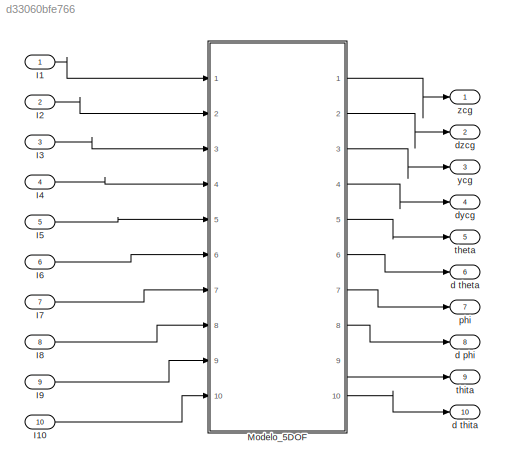
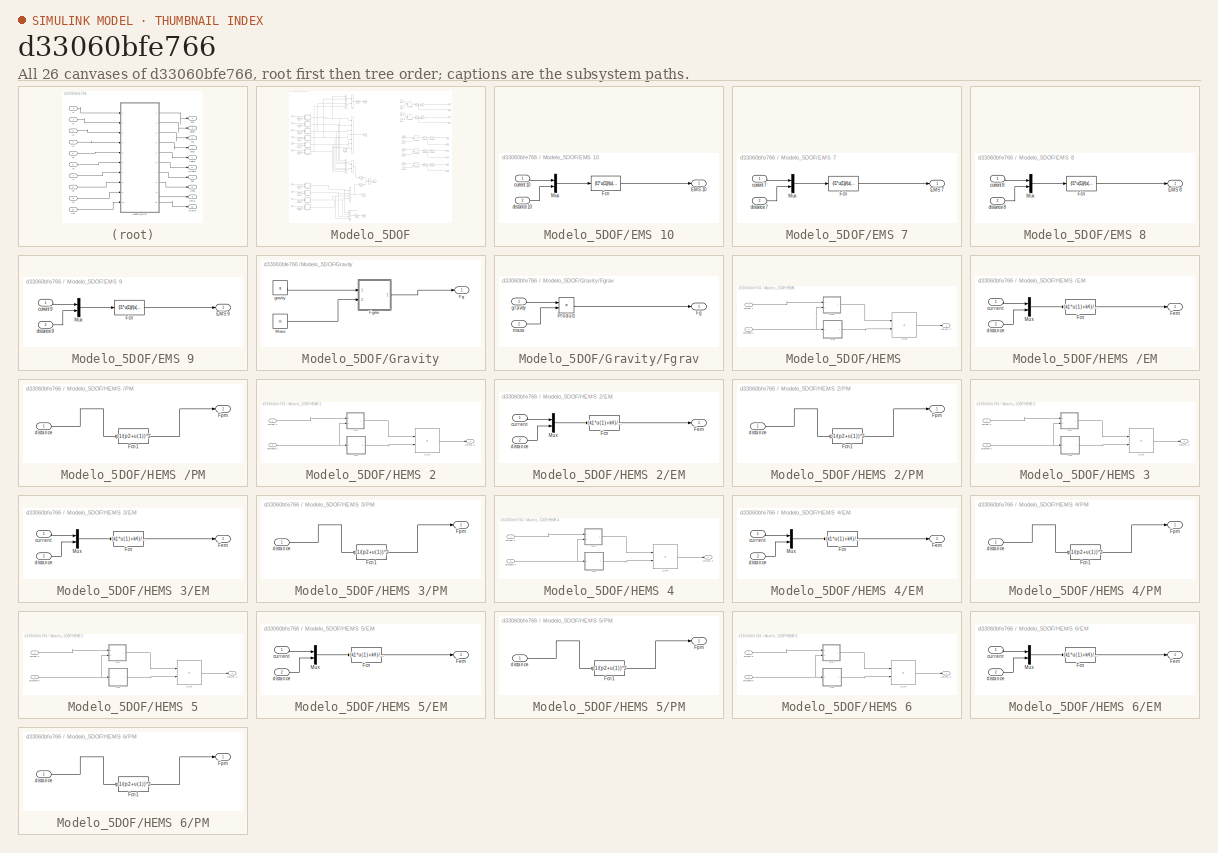
[diagram: thumbnail index - all 26 canvases of the model, root first then tree order]
MODEL slx_d33060bfe766
KIND model
CONFIG AbsTol = auto
CONFIG EnableMultiTasking = off
CONFIG FixedStep = T
CONFIG MaxStep = auto
CONFIG MinStep = auto
CONFIG RelTol = 1e-3
CONFIG SampleTimeConstraint = Unconstrained
CONFIG SolverName = VariableStepAuto
CONFIG StartTime = 0.0
CONFIG StopTime = 5
BLOCK [Inport] I1
BLOCK [Inport] I10
  Port = 10
BLOCK [Inport] I2
  Port = 2
BLOCK [Inport] I3
  Port = 3
BLOCK [Inport] I4
  Port = 4
BLOCK [Inport] I5
  Port = 5
BLOCK [Inport] I6
  Port = 6
BLOCK [Inport] I7
  Port = 7
BLOCK [Inport] I8
  Port = 8
BLOCK [Inport] I9
  Port = 9
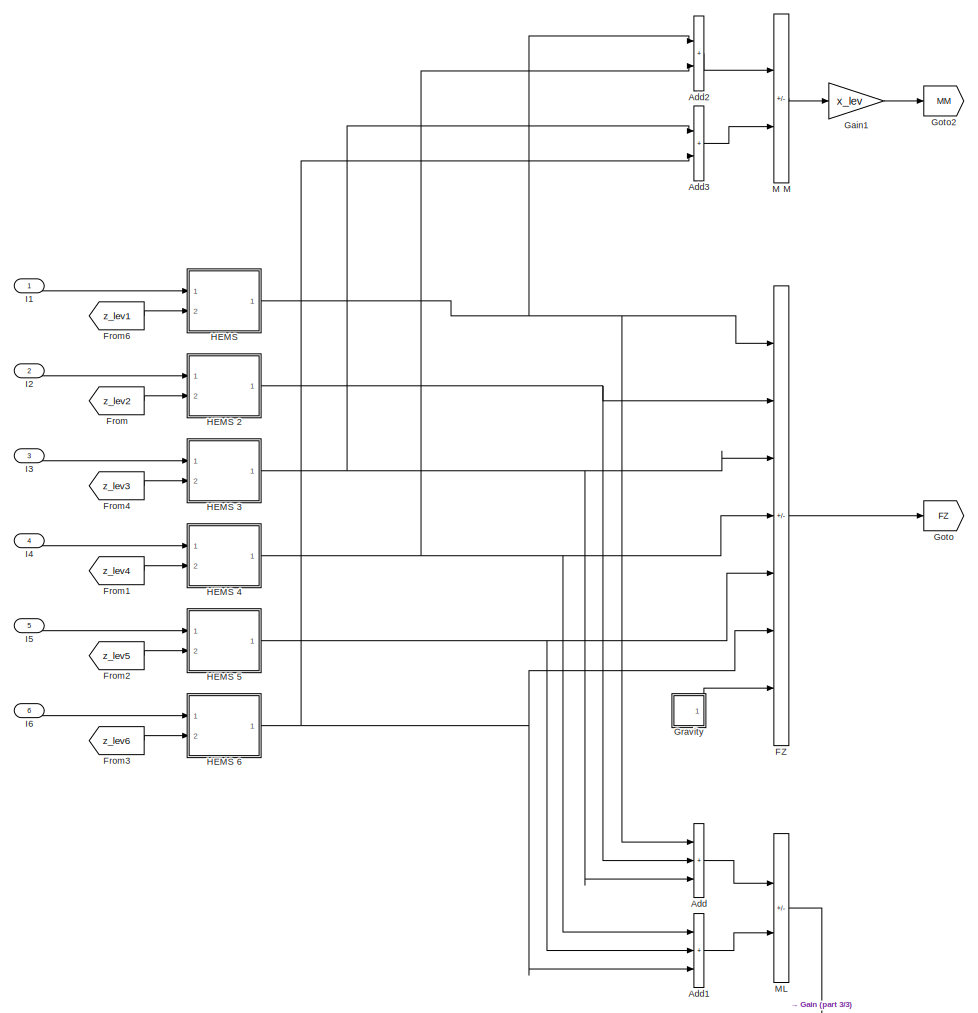
[diagram: Modelo_5DOF - part 1/3, top left region]
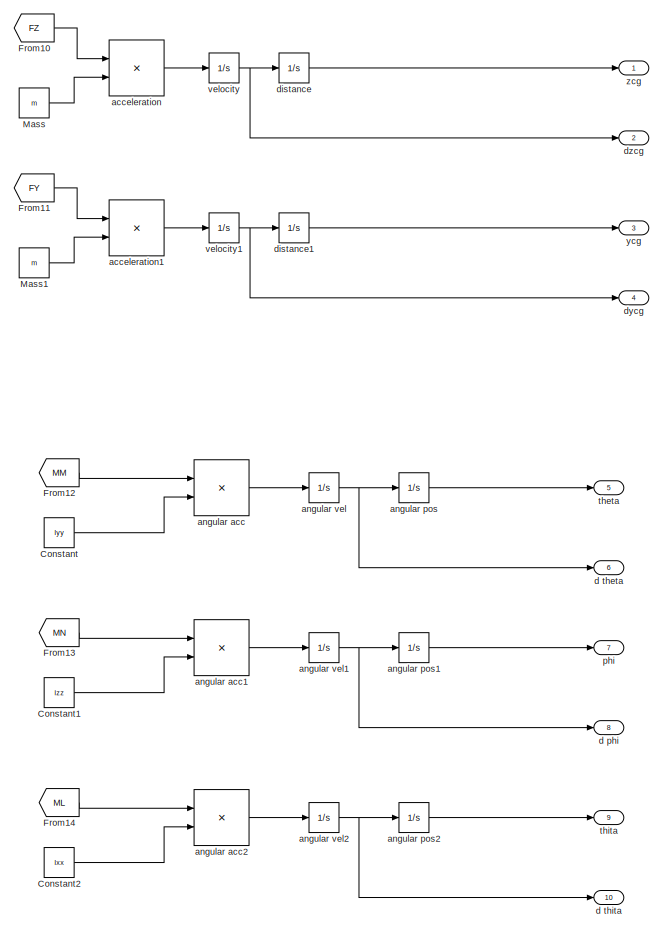
[diagram: Modelo_5DOF - part 2/3, middle right region]
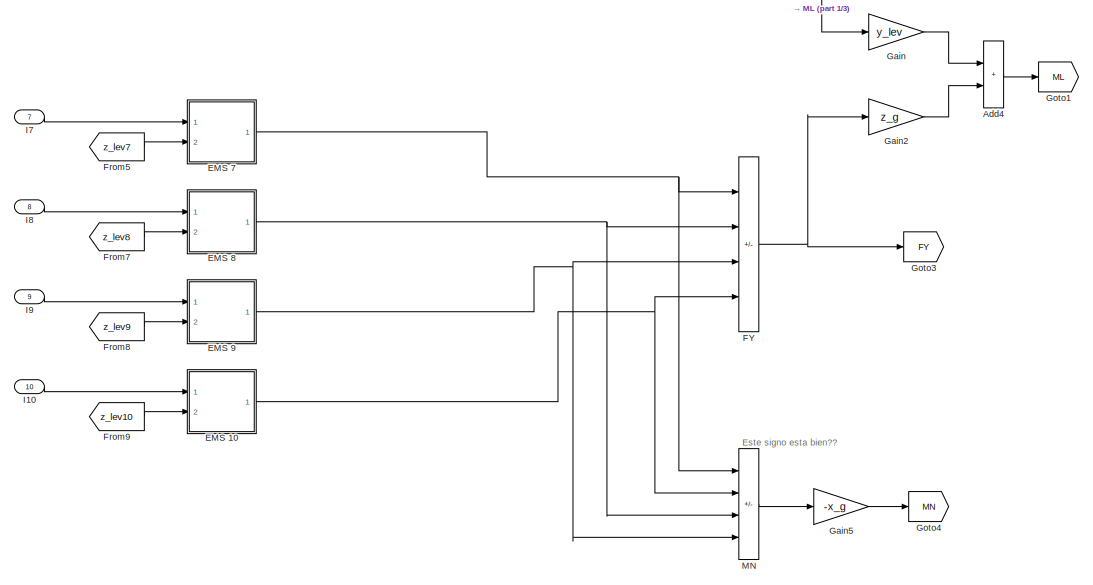
[diagram: Modelo_5DOF - part 3/3, bottom left region]
BLOCK [SubSystem] Modelo_5DOF
  Ports = [10, 10]
  RequestExecContextInheritance = off
BLOCK [Sum] Modelo_5DOF/Add
  IconShape = rectangular
  Inputs = +++
  Ports = [3, 1]
BLOCK [Sum] Modelo_5DOF/Add1
  IconShape = rectangular
  Inputs = +++
  Ports = [3, 1]
BLOCK [Sum] Modelo_5DOF/Add2
  IconShape = rectangular
  Ports = [2, 1]
BLOCK [Sum] Modelo_5DOF/Add3
  IconShape = rectangular
  Ports = [2, 1]
BLOCK [Sum] Modelo_5DOF/Add4
  IconShape = rectangular
  Ports = [2, 1]
BLOCK [Constant] Modelo_5DOF/Constant
  Value = Iyy
BLOCK [Constant] Modelo_5DOF/Constant1
  Value = Izz
BLOCK [Constant] Modelo_5DOF/Constant2
  Value = Ixx
BLOCK [SubSystem] Modelo_5DOF/EMS 10
  Ports = [2, 1]
  RequestExecContextInheritance = off
BLOCK [Outport] Modelo_5DOF/EMS 10/EMS 10
  VectorParamsAs1DForOutWhenUnconnected = off
BLOCK [Fcn] Modelo_5DOF/EMS 10/Fcn
  Expr = (l1*u(1))/(u(2)*l3+l2)^2
BLOCK [Mux] Modelo_5DOF/EMS 10/Mux
  DisplayOption = bar
  Inputs = 2
  Ports = [2, 1]
BLOCK [Inport] Modelo_5DOF/EMS 10/current 10
BLOCK [Inport] Modelo_5DOF/EMS 10/distance 10
  Port = 2
BLOCK [SubSystem] Modelo_5DOF/EMS 7
  Ports = [2, 1]
  RequestExecContextInheritance = off
BLOCK [Outport] Modelo_5DOF/EMS 7/EMS 7
  VectorParamsAs1DForOutWhenUnconnected = off
BLOCK [Fcn] Modelo_5DOF/EMS 7/Fcn
  Expr = (l1*u(1))/(u(2)*l3+l2)^2
BLOCK [Mux] Modelo_5DOF/EMS 7/Mux
  DisplayOption = bar
  Inputs = 2
  Ports = [2, 1]
BLOCK [Inport] Modelo_5DOF/EMS 7/current 7
BLOCK [Inport] Modelo_5DOF/EMS 7/distance 7
  Port = 2
BLOCK [SubSystem] Modelo_5DOF/EMS 8
  Ports = [2, 1]
  RequestExecContextInheritance = off
BLOCK [Outport] Modelo_5DOF/EMS 8/EMS 8
  VectorParamsAs1DForOutWhenUnconnected = off
BLOCK [Fcn] Modelo_5DOF/EMS 8/Fcn
  Expr = (l1*u(1))/(u(2)*l3+l2)^2
BLOCK [Mux] Modelo_5DOF/EMS 8/Mux
  DisplayOption = bar
  Inputs = 2
  Ports = [2, 1]
BLOCK [Inport] Modelo_5DOF/EMS 8/current 8
BLOCK [Inport] Modelo_5DOF/EMS 8/distance 8
  Port = 2
BLOCK [SubSystem] Modelo_5DOF/EMS 9
  Ports = [2, 1]
  RequestExecContextInheritance = off
BLOCK [Outport] Modelo_5DOF/EMS 9/EMS 9
  VectorParamsAs1DForOutWhenUnconnected = off
BLOCK [Fcn] Modelo_5DOF/EMS 9/Fcn
  Expr = (l1*u(1))/(u(2)*l3+l2)^2
BLOCK [Mux] Modelo_5DOF/EMS 9/Mux
  DisplayOption = bar
  Inputs = 2
  Ports = [2, 1]
BLOCK [Inport] Modelo_5DOF/EMS 9/current 9
BLOCK [Inport] Modelo_5DOF/EMS 9/distance 9
  Port = 2
BLOCK [Sum] Modelo_5DOF/FY
  IconShape = rectangular
  Inputs = ++--
  Ports = [4, 1]
BLOCK [Sum] Modelo_5DOF/FZ
  IconShape = rectangular
  Inputs = ------+
  Ports = [7, 1]
BLOCK [From] Modelo_5DOF/From
  GotoTag = z_lev2
BLOCK [From] Modelo_5DOF/From1
  GotoTag = z_lev4
BLOCK [From] Modelo_5DOF/From10
  GotoTag = FZ
BLOCK [From] Modelo_5DOF/From11
  GotoTag = FY
BLOCK [From] Modelo_5DOF/From12
  GotoTag = MM
BLOCK [From] Modelo_5DOF/From13
  GotoTag = MN
BLOCK [From] Modelo_5DOF/From14
  GotoTag = ML
BLOCK [From] Modelo_5DOF/From2
  GotoTag = z_lev5
BLOCK [From] Modelo_5DOF/From3
  GotoTag = z_lev6
BLOCK [From] Modelo_5DOF/From4
  GotoTag = z_lev3
BLOCK [From] Modelo_5DOF/From5
  GotoTag = z_lev7
BLOCK [From] Modelo_5DOF/From6
  GotoTag = z_lev1
BLOCK [From] Modelo_5DOF/From7
  GotoTag = z_lev8
BLOCK [From] Modelo_5DOF/From8
  GotoTag = z_lev9
BLOCK [From] Modelo_5DOF/From9
  GotoTag = z_lev10
BLOCK [Gain] Modelo_5DOF/Gain
  Gain = y_lev
BLOCK [Gain] Modelo_5DOF/Gain1
  Gain = x_lev
BLOCK [Gain] Modelo_5DOF/Gain2
  Gain = z_g
BLOCK [Gain] Modelo_5DOF/Gain5
  Gain = -x_g
BLOCK [Goto] Modelo_5DOF/Goto
  GotoTag = FZ
BLOCK [Goto] Modelo_5DOF/Goto1
  GotoTag = ML
BLOCK [Goto] Modelo_5DOF/Goto2
  GotoTag = MM
BLOCK [Goto] Modelo_5DOF/Goto3
  GotoTag = FY
BLOCK [Goto] Modelo_5DOF/Goto4
  GotoTag = MN
BLOCK [SubSystem] Modelo_5DOF/Gravity
  Ports = [0, 1]
  RequestExecContextInheritance = off
BLOCK [Outport] Modelo_5DOF/Gravity/Fg
BLOCK [SubSystem] Modelo_5DOF/Gravity/Fgrav
  Ports = [2, 1]
  RequestExecContextInheritance = off
BLOCK [Outport] Modelo_5DOF/Gravity/Fgrav/Fg
  VectorParamsAs1DForOutWhenUnconnected = off
BLOCK [Product] Modelo_5DOF/Gravity/Fgrav/Product
  Ports = [2, 1]
BLOCK [Inport] Modelo_5DOF/Gravity/Fgrav/gravity
BLOCK [Inport] Modelo_5DOF/Gravity/Fgrav/mass
  Port = 2
BLOCK [Constant] Modelo_5DOF/Gravity/Mass
  Value = m
BLOCK [Constant] Modelo_5DOF/Gravity/gravity
  Value = g
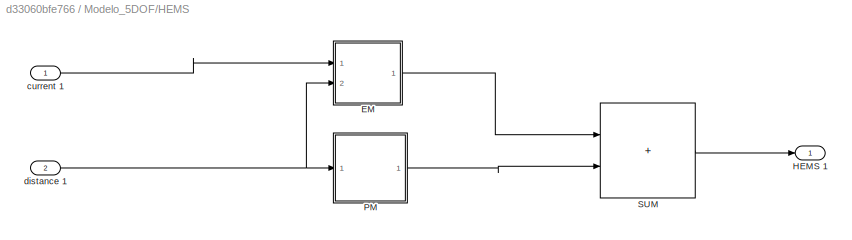
BLOCK [SubSystem] Modelo_5DOF/HEMS 
  Ports = [2, 1]
  RequestExecContextInheritance = off
BLOCK [SubSystem] Modelo_5DOF/HEMS /EM
  Ports = [2, 1]
  RequestExecContextInheritance = off
BLOCK [Fcn] Modelo_5DOF/HEMS /EM/Fcn
  Expr = (k1*u(1)+k4)/(u(2)*k3-k2)^2
BLOCK [Outport] Modelo_5DOF/HEMS /EM/Fem
  VectorParamsAs1DForOutWhenUnconnected = off
BLOCK [Mux] Modelo_5DOF/HEMS /EM/Mux
  DisplayOption = bar
  Inputs = 2
  Ports = [2, 1]
BLOCK [Inport] Modelo_5DOF/HEMS /EM/current
BLOCK [Inport] Modelo_5DOF/HEMS /EM/distance
  Port = 2
BLOCK [Outport] Modelo_5DOF/HEMS /HEMS 1
  VectorParamsAs1DForOutWhenUnconnected = off
BLOCK [SubSystem] Modelo_5DOF/HEMS /PM
  Ports = [1, 1]
  RequestExecContextInheritance = off
BLOCK [Fcn] Modelo_5DOF/HEMS /PM/Fcn1
  Expr = p1/(p2+u(1))^2
BLOCK [Outport] Modelo_5DOF/HEMS /PM/Fpm
  VectorParamsAs1DForOutWhenUnconnected = off
BLOCK [Inport] Modelo_5DOF/HEMS /PM/distance
BLOCK [Sum] Modelo_5DOF/HEMS /SUM
  IconShape = rectangular
  Ports = [2, 1]
BLOCK [Inport] Modelo_5DOF/HEMS /current 1
BLOCK [Inport] Modelo_5DOF/HEMS /distance 1
  Port = 2
BLOCK [SubSystem] Modelo_5DOF/HEMS 2
  Ports = [2, 1]
  RequestExecContextInheritance = off
BLOCK [SubSystem] Modelo_5DOF/HEMS 2/EM
  Ports = [2, 1]
  RequestExecContextInheritance = off
BLOCK [Fcn] Modelo_5DOF/HEMS 2/EM/Fcn
  Expr = (k1*u(1)+k4)/(u(2)*k3-k2)^2
BLOCK [Outport] Modelo_5DOF/HEMS 2/EM/Fem
  VectorParamsAs1DForOutWhenUnconnected = off
BLOCK [Mux] Modelo_5DOF/HEMS 2/EM/Mux
  DisplayOption = bar
  Inputs = 2
  Ports = [2, 1]
BLOCK [Inport] Modelo_5DOF/HEMS 2/EM/current
BLOCK [Inport] Modelo_5DOF/HEMS 2/EM/distance
  Port = 2
BLOCK [Outport] Modelo_5DOF/HEMS 2/HEMS 2
  VectorParamsAs1DForOutWhenUnconnected = off
BLOCK [SubSystem] Modelo_5DOF/HEMS 2/PM
  Ports = [1, 1]
  RequestExecContextInheritance = off
BLOCK [Fcn] Modelo_5DOF/HEMS 2/PM/Fcn1
  Expr = p1/(p2+u(1))^2
BLOCK [Outport] Modelo_5DOF/HEMS 2/PM/Fpm
  VectorParamsAs1DForOutWhenUnconnected = off
BLOCK [Inport] Modelo_5DOF/HEMS 2/PM/distance
BLOCK [Sum] Modelo_5DOF/HEMS 2/SUM
  IconShape = rectangular
  Ports = [2, 1]
BLOCK [Inport] Modelo_5DOF/HEMS 2/current 2
BLOCK [Inport] Modelo_5DOF/HEMS 2/distance 2
  Port = 2
BLOCK [SubSystem] Modelo_5DOF/HEMS 3
  Ports = [2, 1]
  RequestExecContextInheritance = off
BLOCK [SubSystem] Modelo_5DOF/HEMS 3/EM
  Ports = [2, 1]
  RequestExecContextInheritance = off
BLOCK [Fcn] Modelo_5DOF/HEMS 3/EM/Fcn
  Expr = (k1*u(1)+k4)/(u(2)*k3-k2)^2
BLOCK [Outport] Modelo_5DOF/HEMS 3/EM/Fem
  VectorParamsAs1DForOutWhenUnconnected = off
BLOCK [Mux] Modelo_5DOF/HEMS 3/EM/Mux
  DisplayOption = bar
  Inputs = 2
  Ports = [2, 1]
BLOCK [Inport] Modelo_5DOF/HEMS 3/EM/current
BLOCK [Inport] Modelo_5DOF/HEMS 3/EM/distance
  Port = 2
BLOCK [Outport] Modelo_5DOF/HEMS 3/HEMS 3
  VectorParamsAs1DForOutWhenUnconnected = off
BLOCK [SubSystem] Modelo_5DOF/HEMS 3/PM
  Ports = [1, 1]
  RequestExecContextInheritance = off
BLOCK [Fcn] Modelo_5DOF/HEMS 3/PM/Fcn1
  Expr = p1/(p2+u(1))^2
BLOCK [Outport] Modelo_5DOF/HEMS 3/PM/Fpm
  VectorParamsAs1DForOutWhenUnconnected = off
BLOCK [Inport] Modelo_5DOF/HEMS 3/PM/distance
BLOCK [Sum] Modelo_5DOF/HEMS 3/SUM
  IconShape = rectangular
  Ports = [2, 1]
BLOCK [Inport] Modelo_5DOF/HEMS 3/current 3
BLOCK [Inport] Modelo_5DOF/HEMS 3/distance 3
  Port = 2
BLOCK [SubSystem] Modelo_5DOF/HEMS 4
  Ports = [2, 1]
  RequestExecContextInheritance = off
BLOCK [SubSystem] Modelo_5DOF/HEMS 4/EM
  Ports = [2, 1]
  RequestExecContextInheritance = off
BLOCK [Fcn] Modelo_5DOF/HEMS 4/EM/Fcn
  Expr = (k1*u(1)+k4)/(u(2)*k3-k2)^2
BLOCK [Outport] Modelo_5DOF/HEMS 4/EM/Fem
  VectorParamsAs1DForOutWhenUnconnected = off
BLOCK [Mux] Modelo_5DOF/HEMS 4/EM/Mux
  DisplayOption = bar
  Inputs = 2
  Ports = [2, 1]
BLOCK [Inport] Modelo_5DOF/HEMS 4/EM/current
BLOCK [Inport] Modelo_5DOF/HEMS 4/EM/distance
  Port = 2
BLOCK [Outport] Modelo_5DOF/HEMS 4/HEMS 4
  VectorParamsAs1DForOutWhenUnconnected = off
BLOCK [SubSystem] Modelo_5DOF/HEMS 4/PM
  Ports = [1, 1]
  RequestExecContextInheritance = off
BLOCK [Fcn] Modelo_5DOF/HEMS 4/PM/Fcn1
  Expr = p1/(p2+u(1))^2
BLOCK [Outport] Modelo_5DOF/HEMS 4/PM/Fpm
  VectorParamsAs1DForOutWhenUnconnected = off
BLOCK [Inport] Modelo_5DOF/HEMS 4/PM/distance
BLOCK [Sum] Modelo_5DOF/HEMS 4/SUM
  IconShape = rectangular
  Ports = [2, 1]
BLOCK [Inport] Modelo_5DOF/HEMS 4/current 4
BLOCK [Inport] Modelo_5DOF/HEMS 4/distance 4
  Port = 2
BLOCK [SubSystem] Modelo_5DOF/HEMS 5
  Ports = [2, 1]
  RequestExecContextInheritance = off
BLOCK [SubSystem] Modelo_5DOF/HEMS 5/EM
  Ports = [2, 1]
  RequestExecContextInheritance = off
BLOCK [Fcn] Modelo_5DOF/HEMS 5/EM/Fcn
  Expr = (k1*u(1)+k4)/(u(2)*k3-k2)^2
BLOCK [Outport] Modelo_5DOF/HEMS 5/EM/Fem
  VectorParamsAs1DForOutWhenUnconnected = off
BLOCK [Mux] Modelo_5DOF/HEMS 5/EM/Mux
  DisplayOption = bar
  Inputs = 2
  Ports = [2, 1]
BLOCK [Inport] Modelo_5DOF/HEMS 5/EM/current
BLOCK [Inport] Modelo_5DOF/HEMS 5/EM/distance
  Port = 2
BLOCK [Outport] Modelo_5DOF/HEMS 5/HEMS 5
  VectorParamsAs1DForOutWhenUnconnected = off
BLOCK [SubSystem] Modelo_5DOF/HEMS 5/PM
  Ports = [1, 1]
  RequestExecContextInheritance = off
BLOCK [Fcn] Modelo_5DOF/HEMS 5/PM/Fcn1
  Expr = p1/(p2+u(1))^2
BLOCK [Outport] Modelo_5DOF/HEMS 5/PM/Fpm
  VectorParamsAs1DForOutWhenUnconnected = off
BLOCK [Inport] Modelo_5DOF/HEMS 5/PM/distance
BLOCK [Sum] Modelo_5DOF/HEMS 5/SUM
  IconShape = rectangular
  Ports = [2, 1]
BLOCK [Inport] Modelo_5DOF/HEMS 5/current 5
BLOCK [Inport] Modelo_5DOF/HEMS 5/distance 5
  Port = 2
BLOCK [SubSystem] Modelo_5DOF/HEMS 6
  Ports = [2, 1]
  RequestExecContextInheritance = off
BLOCK [SubSystem] Modelo_5DOF/HEMS 6/EM
  Ports = [2, 1]
  RequestExecContextInheritance = off
BLOCK [Fcn] Modelo_5DOF/HEMS 6/EM/Fcn
  Expr = (k1*u(1)+k4)/(u(2)*k3-k2)^2
BLOCK [Outport] Modelo_5DOF/HEMS 6/EM/Fem
  VectorParamsAs1DForOutWhenUnconnected = off
BLOCK [Mux] Modelo_5DOF/HEMS 6/EM/Mux
  DisplayOption = bar
  Inputs = 2
  Ports = [2, 1]
BLOCK [Inport] Modelo_5DOF/HEMS 6/EM/current
BLOCK [Inport] Modelo_5DOF/HEMS 6/EM/distance
  Port = 2
BLOCK [Outport] Modelo_5DOF/HEMS 6/HEMS 6
  VectorParamsAs1DForOutWhenUnconnected = off
BLOCK [SubSystem] Modelo_5DOF/HEMS 6/PM
  Ports = [1, 1]
  RequestExecContextInheritance = off
BLOCK [Fcn] Modelo_5DOF/HEMS 6/PM/Fcn1
  Expr = p1/(p2+u(1))^2
BLOCK [Outport] Modelo_5DOF/HEMS 6/PM/Fpm
  VectorParamsAs1DForOutWhenUnconnected = off
BLOCK [Inport] Modelo_5DOF/HEMS 6/PM/distance
BLOCK [Sum] Modelo_5DOF/HEMS 6/SUM
  IconShape = rectangular
  Ports = [2, 1]
BLOCK [Inport] Modelo_5DOF/HEMS 6/current 6
BLOCK [Inport] Modelo_5DOF/HEMS 6/distance 6
  Port = 2
BLOCK [Inport] Modelo_5DOF/I1
BLOCK [Inport] Modelo_5DOF/I10
  Port = 10
BLOCK [Inport] Modelo_5DOF/I2
  Port = 2
BLOCK [Inport] Modelo_5DOF/I3
  Port = 3
BLOCK [Inport] Modelo_5DOF/I4
  Port = 4
BLOCK [Inport] Modelo_5DOF/I5
  Port = 5
BLOCK [Inport] Modelo_5DOF/I6
  Port = 6
BLOCK [Inport] Modelo_5DOF/I7
  Port = 7
BLOCK [Inport] Modelo_5DOF/I8
  Port = 8
BLOCK [Inport] Modelo_5DOF/I9
  Port = 9
BLOCK [Sum] Modelo_5DOF/M M
  IconShape = rectangular
  Inputs = +-
  Ports = [2, 1]
BLOCK [Sum] Modelo_5DOF/ML
  IconShape = rectangular
  Inputs = +-
  Ports = [2, 1]
BLOCK [Sum] Modelo_5DOF/MN
  IconShape = rectangular
  Inputs = ++--
  Ports = [4, 1]
BLOCK [Constant] Modelo_5DOF/Mass
  Value = m
BLOCK [Constant] Modelo_5DOF/Mass1
  Value = m
BLOCK [Product] Modelo_5DOF/acceleration
  Inputs = */
  Ports = [2, 1]
BLOCK [Product] Modelo_5DOF/acceleration1
  Inputs = */
  Ports = [2, 1]
BLOCK [Product] Modelo_5DOF/angular acc
  Inputs = */
  Ports = [2, 1]
BLOCK [Product] Modelo_5DOF/angular acc1
  Inputs = */
  Ports = [2, 1]
BLOCK [Product] Modelo_5DOF/angular acc2
  Inputs = */
  Ports = [2, 1]
BLOCK [Integrator] Modelo_5DOF/angular pos
  InitialCondition = theta0
  Ports = [1, 1]
BLOCK [Integrator] Modelo_5DOF/angular pos1
  InitialCondition = theta0
  Ports = [1, 1]
BLOCK [Integrator] Modelo_5DOF/angular pos2
  InitialCondition = theta0
  Ports = [1, 1]
BLOCK [Integrator] Modelo_5DOF/angular vel
  Ports = [1, 1]
BLOCK [Integrator] Modelo_5DOF/angular vel1
  Ports = [1, 1]
BLOCK [Integrator] Modelo_5DOF/angular vel2
  Ports = [1, 1]
BLOCK [Outport] Modelo_5DOF/d phi
  Port = 8
  VectorParamsAs1DForOutWhenUnconnected = off
BLOCK [Outport] Modelo_5DOF/d theta
  Port = 6
  VectorParamsAs1DForOutWhenUnconnected = off
BLOCK [Outport] Modelo_5DOF/d thita
  Port = 10
  VectorParamsAs1DForOutWhenUnconnected = off
BLOCK [Integrator] Modelo_5DOF/distance
  InitialCondition = z_ini
  Ports = [1, 1]
BLOCK [Integrator] Modelo_5DOF/distance1
  Ports = [1, 1]
BLOCK [Outport] Modelo_5DOF/dycg
  Port = 4
  VectorParamsAs1DForOutWhenUnconnected = off
BLOCK [Outport] Modelo_5DOF/dzcg
  Port = 2
  VectorParamsAs1DForOutWhenUnconnected = off
BLOCK [Outport] Modelo_5DOF/phi
  Port = 7
  VectorParamsAs1DForOutWhenUnconnected = off
BLOCK [Outport] Modelo_5DOF/theta
  Port = 5
  VectorParamsAs1DForOutWhenUnconnected = off
BLOCK [Outport] Modelo_5DOF/thita
  Port = 9
  VectorParamsAs1DForOutWhenUnconnected = off
BLOCK [Integrator] Modelo_5DOF/velocity
  Ports = [1, 1]
BLOCK [Integrator] Modelo_5DOF/velocity1
  Ports = [1, 1]
BLOCK [Outport] Modelo_5DOF/ycg
  Port = 3
  VectorParamsAs1DForOutWhenUnconnected = off
BLOCK [Outport] Modelo_5DOF/zcg
  VectorParamsAs1DForOutWhenUnconnected = off
BLOCK [Outport] d phi
  Port = 8
  VectorParamsAs1DForOutWhenUnconnected = off
BLOCK [Outport] d theta
  Port = 6
  VectorParamsAs1DForOutWhenUnconnected = off
BLOCK [Outport] d thita
  Port = 10
  VectorParamsAs1DForOutWhenUnconnected = off
BLOCK [Outport] dycg
  Port = 4
  VectorParamsAs1DForOutWhenUnconnected = off
BLOCK [Outport] dzcg
  Port = 2
  VectorParamsAs1DForOutWhenUnconnected = off
BLOCK [Outport] phi
  Port = 7
  VectorParamsAs1DForOutWhenUnconnected = off
BLOCK [Outport] theta
  Port = 5
  VectorParamsAs1DForOutWhenUnconnected = off
BLOCK [Outport] thita
  Port = 9
  VectorParamsAs1DForOutWhenUnconnected = off
BLOCK [Outport] ycg
  Port = 3
  VectorParamsAs1DForOutWhenUnconnected = off
BLOCK [Outport] zcg
  VectorParamsAs1DForOutWhenUnconnected = off
ANNOTATION Modelo_5DOF: Este signo esta bien??
LINE I10:1 -> Modelo_5DOF:10
LINE I1:1 -> Modelo_5DOF:1
LINE I2:1 -> Modelo_5DOF:2
LINE I3:1 -> Modelo_5DOF:3
LINE I4:1 -> Modelo_5DOF:4
LINE I5:1 -> Modelo_5DOF:5
LINE I6:1 -> Modelo_5DOF:6
LINE I7:1 -> Modelo_5DOF:7
LINE I8:1 -> Modelo_5DOF:8
LINE I9:1 -> Modelo_5DOF:9
LINE Modelo_5DOF/Add1:1 -> Modelo_5DOF/ML:2
LINE Modelo_5DOF/Add2:1 -> Modelo_5DOF/M M:1
LINE Modelo_5DOF/Add3:1 -> Modelo_5DOF/M M:2
LINE Modelo_5DOF/Add4:1 -> Modelo_5DOF/Goto1:1
LINE Modelo_5DOF/Add:1 -> Modelo_5DOF/ML:1
LINE Modelo_5DOF/Constant1:1 -> Modelo_5DOF/angular acc1:2
LINE Modelo_5DOF/Constant2:1 -> Modelo_5DOF/angular acc2:2
LINE Modelo_5DOF/Constant:1 -> Modelo_5DOF/angular acc:2
LINE Modelo_5DOF/EMS 10/Fcn:1 -> Modelo_5DOF/EMS 10/EMS 10:1
LINE Modelo_5DOF/EMS 10/Mux:1 -> Modelo_5DOF/EMS 10/Fcn:1
LINE Modelo_5DOF/EMS 10/current 10:1 -> Modelo_5DOF/EMS 10/Mux:1
LINE Modelo_5DOF/EMS 10/distance 10:1 -> Modelo_5DOF/EMS 10/Mux:2
NET Modelo_5DOF/EMS 10:1 -> Modelo_5DOF/FY:4, Modelo_5DOF/MN:2
LINE Modelo_5DOF/EMS 7/Fcn:1 -> Modelo_5DOF/EMS 7/EMS 7:1
LINE Modelo_5DOF/EMS 7/Mux:1 -> Modelo_5DOF/EMS 7/Fcn:1
LINE Modelo_5DOF/EMS 7/current 7:1 -> Modelo_5DOF/EMS 7/Mux:1
LINE Modelo_5DOF/EMS 7/distance 7:1 -> Modelo_5DOF/EMS 7/Mux:2
NET Modelo_5DOF/EMS 7:1 -> Modelo_5DOF/FY:1, Modelo_5DOF/MN:1
LINE Modelo_5DOF/EMS 8/Fcn:1 -> Modelo_5DOF/EMS 8/EMS 8:1
LINE Modelo_5DOF/EMS 8/Mux:1 -> Modelo_5DOF/EMS 8/Fcn:1
LINE Modelo_5DOF/EMS 8/current 8:1 -> Modelo_5DOF/EMS 8/Mux:1
LINE Modelo_5DOF/EMS 8/distance 8:1 -> Modelo_5DOF/EMS 8/Mux:2
NET Modelo_5DOF/EMS 8:1 -> Modelo_5DOF/FY:2, Modelo_5DOF/MN:3
LINE Modelo_5DOF/EMS 9/Fcn:1 -> Modelo_5DOF/EMS 9/EMS 9:1
LINE Modelo_5DOF/EMS 9/Mux:1 -> Modelo_5DOF/EMS 9/Fcn:1
LINE Modelo_5DOF/EMS 9/current 9:1 -> Modelo_5DOF/EMS 9/Mux:1
LINE Modelo_5DOF/EMS 9/distance 9:1 -> Modelo_5DOF/EMS 9/Mux:2
NET Modelo_5DOF/EMS 9:1 -> Modelo_5DOF/FY:3, Modelo_5DOF/MN:4
NET Modelo_5DOF/FY:1 -> Modelo_5DOF/Gain2:1, Modelo_5DOF/Goto3:1
LINE Modelo_5DOF/FZ:1 -> Modelo_5DOF/Goto:1
LINE Modelo_5DOF/From10:1 -> Modelo_5DOF/acceleration:1
LINE Modelo_5DOF/From11:1 -> Modelo_5DOF/acceleration1:1
LINE Modelo_5DOF/From12:1 -> Modelo_5DOF/angular acc:1
LINE Modelo_5DOF/From13:1 -> Modelo_5DOF/angular acc1:1
LINE Modelo_5DOF/From14:1 -> Modelo_5DOF/angular acc2:1
LINE Modelo_5DOF/From1:1 -> Modelo_5DOF/HEMS 4:2
LINE Modelo_5DOF/From2:1 -> Modelo_5DOF/HEMS 5:2
LINE Modelo_5DOF/From3:1 -> Modelo_5DOF/HEMS 6:2
LINE Modelo_5DOF/From4:1 -> Modelo_5DOF/HEMS 3:2
LINE Modelo_5DOF/From5:1 -> Modelo_5DOF/EMS 7:2
LINE Modelo_5DOF/From6:1 -> Modelo_5DOF/HEMS :2
LINE Modelo_5DOF/From7:1 -> Modelo_5DOF/EMS 8:2
LINE Modelo_5DOF/From8:1 -> Modelo_5DOF/EMS 9:2
LINE Modelo_5DOF/From9:1 -> Modelo_5DOF/EMS 10:2
LINE Modelo_5DOF/From:1 -> Modelo_5DOF/HEMS 2:2
LINE Modelo_5DOF/Gain1:1 -> Modelo_5DOF/Goto2:1
LINE Modelo_5DOF/Gain2:1 -> Modelo_5DOF/Add4:2
LINE Modelo_5DOF/Gain5:1 -> Modelo_5DOF/Goto4:1
LINE Modelo_5DOF/Gain:1 -> Modelo_5DOF/Add4:1
LINE Modelo_5DOF/Gravity/Fgrav/Product:1 -> Modelo_5DOF/Gravity/Fgrav/Fg:1
LINE Modelo_5DOF/Gravity/Fgrav/gravity:1 -> Modelo_5DOF/Gravity/Fgrav/Product:1
LINE Modelo_5DOF/Gravity/Fgrav/mass:1 -> Modelo_5DOF/Gravity/Fgrav/Product:2
LINE Modelo_5DOF/Gravity/Fgrav:1 -> Modelo_5DOF/Gravity/Fg:1
LINE Modelo_5DOF/Gravity/Mass:1 -> Modelo_5DOF/Gravity/Fgrav:2
LINE Modelo_5DOF/Gravity/gravity:1 -> Modelo_5DOF/Gravity/Fgrav:1
LINE Modelo_5DOF/Gravity:1 -> Modelo_5DOF/FZ:7
LINE Modelo_5DOF/HEMS /EM/Fcn:1 -> Modelo_5DOF/HEMS /EM/Fem:1
LINE Modelo_5DOF/HEMS /EM/Mux:1 -> Modelo_5DOF/HEMS /EM/Fcn:1
LINE Modelo_5DOF/HEMS /EM/current:1 -> Modelo_5DOF/HEMS /EM/Mux:1
LINE Modelo_5DOF/HEMS /EM/distance:1 -> Modelo_5DOF/HEMS /EM/Mux:2
LINE Modelo_5DOF/HEMS /EM:1 -> Modelo_5DOF/HEMS /SUM:1
LINE Modelo_5DOF/HEMS /PM/Fcn1:1 -> Modelo_5DOF/HEMS /PM/Fpm:1
LINE Modelo_5DOF/HEMS /PM/distance:1 -> Modelo_5DOF/HEMS /PM/Fcn1:1
LINE Modelo_5DOF/HEMS /PM:1 -> Modelo_5DOF/HEMS /SUM:2
LINE Modelo_5DOF/HEMS /SUM:1 -> Modelo_5DOF/HEMS /HEMS 1:1
LINE Modelo_5DOF/HEMS /current 1:1 -> Modelo_5DOF/HEMS /EM:1
NET Modelo_5DOF/HEMS /distance 1:1 -> Modelo_5DOF/HEMS /EM:2, Modelo_5DOF/HEMS /PM:1
LINE Modelo_5DOF/HEMS 2/EM/Fcn:1 -> Modelo_5DOF/HEMS 2/EM/Fem:1
LINE Modelo_5DOF/HEMS 2/EM/Mux:1 -> Modelo_5DOF/HEMS 2/EM/Fcn:1
LINE Modelo_5DOF/HEMS 2/EM/current:1 -> Modelo_5DOF/HEMS 2/EM/Mux:1
LINE Modelo_5DOF/HEMS 2/EM/distance:1 -> Modelo_5DOF/HEMS 2/EM/Mux:2
LINE Modelo_5DOF/HEMS 2/EM:1 -> Modelo_5DOF/HEMS 2/SUM:1
LINE Modelo_5DOF/HEMS 2/PM/Fcn1:1 -> Modelo_5DOF/HEMS 2/PM/Fpm:1
LINE Modelo_5DOF/HEMS 2/PM/distance:1 -> Modelo_5DOF/HEMS 2/PM/Fcn1:1
LINE Modelo_5DOF/HEMS 2/PM:1 -> Modelo_5DOF/HEMS 2/SUM:2
LINE Modelo_5DOF/HEMS 2/SUM:1 -> Modelo_5DOF/HEMS 2/HEMS 2:1
LINE Modelo_5DOF/HEMS 2/current 2:1 -> Modelo_5DOF/HEMS 2/EM:1
NET Modelo_5DOF/HEMS 2/distance 2:1 -> Modelo_5DOF/HEMS 2/EM:2, Modelo_5DOF/HEMS 2/PM:1
NET Modelo_5DOF/HEMS 2:1 -> Modelo_5DOF/Add:2, Modelo_5DOF/FZ:2
LINE Modelo_5DOF/HEMS 3/EM/Fcn:1 -> Modelo_5DOF/HEMS 3/EM/Fem:1
LINE Modelo_5DOF/HEMS 3/EM/Mux:1 -> Modelo_5DOF/HEMS 3/EM/Fcn:1
LINE Modelo_5DOF/HEMS 3/EM/current:1 -> Modelo_5DOF/HEMS 3/EM/Mux:1
LINE Modelo_5DOF/HEMS 3/EM/distance:1 -> Modelo_5DOF/HEMS 3/EM/Mux:2
LINE Modelo_5DOF/HEMS 3/EM:1 -> Modelo_5DOF/HEMS 3/SUM:1
LINE Modelo_5DOF/HEMS 3/PM/Fcn1:1 -> Modelo_5DOF/HEMS 3/PM/Fpm:1
LINE Modelo_5DOF/HEMS 3/PM/distance:1 -> Modelo_5DOF/HEMS 3/PM/Fcn1:1
LINE Modelo_5DOF/HEMS 3/PM:1 -> Modelo_5DOF/HEMS 3/SUM:2
LINE Modelo_5DOF/HEMS 3/SUM:1 -> Modelo_5DOF/HEMS 3/HEMS 3:1
LINE Modelo_5DOF/HEMS 3/current 3:1 -> Modelo_5DOF/HEMS 3/EM:1
NET Modelo_5DOF/HEMS 3/distance 3:1 -> Modelo_5DOF/HEMS 3/EM:2, Modelo_5DOF/HEMS 3/PM:1
NET Modelo_5DOF/HEMS 3:1 -> Modelo_5DOF/Add3:1, Modelo_5DOF/Add:3, Modelo_5DOF/FZ:3
LINE Modelo_5DOF/HEMS 4/EM/Fcn:1 -> Modelo_5DOF/HEMS 4/EM/Fem:1
LINE Modelo_5DOF/HEMS 4/EM/Mux:1 -> Modelo_5DOF/HEMS 4/EM/Fcn:1
LINE Modelo_5DOF/HEMS 4/EM/current:1 -> Modelo_5DOF/HEMS 4/EM/Mux:1
LINE Modelo_5DOF/HEMS 4/EM/distance:1 -> Modelo_5DOF/HEMS 4/EM/Mux:2
LINE Modelo_5DOF/HEMS 4/EM:1 -> Modelo_5DOF/HEMS 4/SUM:1
LINE Modelo_5DOF/HEMS 4/PM/Fcn1:1 -> Modelo_5DOF/HEMS 4/PM/Fpm:1
LINE Modelo_5DOF/HEMS 4/PM/distance:1 -> Modelo_5DOF/HEMS 4/PM/Fcn1:1
LINE Modelo_5DOF/HEMS 4/PM:1 -> Modelo_5DOF/HEMS 4/SUM:2
LINE Modelo_5DOF/HEMS 4/SUM:1 -> Modelo_5DOF/HEMS 4/HEMS 4:1
LINE Modelo_5DOF/HEMS 4/current 4:1 -> Modelo_5DOF/HEMS 4/EM:1
NET Modelo_5DOF/HEMS 4/distance 4:1 -> Modelo_5DOF/HEMS 4/EM:2, Modelo_5DOF/HEMS 4/PM:1
NET Modelo_5DOF/HEMS 4:1 -> Modelo_5DOF/Add1:1, Modelo_5DOF/Add2:2, Modelo_5DOF/FZ:4
LINE Modelo_5DOF/HEMS 5/EM/Fcn:1 -> Modelo_5DOF/HEMS 5/EM/Fem:1
LINE Modelo_5DOF/HEMS 5/EM/Mux:1 -> Modelo_5DOF/HEMS 5/EM/Fcn:1
LINE Modelo_5DOF/HEMS 5/EM/current:1 -> Modelo_5DOF/HEMS 5/EM/Mux:1
LINE Modelo_5DOF/HEMS 5/EM/distance:1 -> Modelo_5DOF/HEMS 5/EM/Mux:2
LINE Modelo_5DOF/HEMS 5/EM:1 -> Modelo_5DOF/HEMS 5/SUM:1
LINE Modelo_5DOF/HEMS 5/PM/Fcn1:1 -> Modelo_5DOF/HEMS 5/PM/Fpm:1
LINE Modelo_5DOF/HEMS 5/PM/distance:1 -> Modelo_5DOF/HEMS 5/PM/Fcn1:1
LINE Modelo_5DOF/HEMS 5/PM:1 -> Modelo_5DOF/HEMS 5/SUM:2
LINE Modelo_5DOF/HEMS 5/SUM:1 -> Modelo_5DOF/HEMS 5/HEMS 5:1
LINE Modelo_5DOF/HEMS 5/current 5:1 -> Modelo_5DOF/HEMS 5/EM:1
NET Modelo_5DOF/HEMS 5/distance 5:1 -> Modelo_5DOF/HEMS 5/EM:2, Modelo_5DOF/HEMS 5/PM:1
NET Modelo_5DOF/HEMS 5:1 -> Modelo_5DOF/Add1:2, Modelo_5DOF/FZ:5
LINE Modelo_5DOF/HEMS 6/EM/Fcn:1 -> Modelo_5DOF/HEMS 6/EM/Fem:1
LINE Modelo_5DOF/HEMS 6/EM/Mux:1 -> Modelo_5DOF/HEMS 6/EM/Fcn:1
LINE Modelo_5DOF/HEMS 6/EM/current:1 -> Modelo_5DOF/HEMS 6/EM/Mux:1
LINE Modelo_5DOF/HEMS 6/EM/distance:1 -> Modelo_5DOF/HEMS 6/EM/Mux:2
LINE Modelo_5DOF/HEMS 6/EM:1 -> Modelo_5DOF/HEMS 6/SUM:1
LINE Modelo_5DOF/HEMS 6/PM/Fcn1:1 -> Modelo_5DOF/HEMS 6/PM/Fpm:1
LINE Modelo_5DOF/HEMS 6/PM/distance:1 -> Modelo_5DOF/HEMS 6/PM/Fcn1:1
LINE Modelo_5DOF/HEMS 6/PM:1 -> Modelo_5DOF/HEMS 6/SUM:2
LINE Modelo_5DOF/HEMS 6/SUM:1 -> Modelo_5DOF/HEMS 6/HEMS 6:1
LINE Modelo_5DOF/HEMS 6/current 6:1 -> Modelo_5DOF/HEMS 6/EM:1
NET Modelo_5DOF/HEMS 6/distance 6:1 -> Modelo_5DOF/HEMS 6/EM:2, Modelo_5DOF/HEMS 6/PM:1
NET Modelo_5DOF/HEMS 6:1 -> Modelo_5DOF/Add1:3, Modelo_5DOF/Add3:2, Modelo_5DOF/FZ:6
NET Modelo_5DOF/HEMS :1 -> Modelo_5DOF/Add2:1, Modelo_5DOF/Add:1, Modelo_5DOF/FZ:1
LINE Modelo_5DOF/I10:1 -> Modelo_5DOF/EMS 10:1
LINE Modelo_5DOF/I1:1 -> Modelo_5DOF/HEMS :1
LINE Modelo_5DOF/I2:1 -> Modelo_5DOF/HEMS 2:1
LINE Modelo_5DOF/I3:1 -> Modelo_5DOF/HEMS 3:1
LINE Modelo_5DOF/I4:1 -> Modelo_5DOF/HEMS 4:1
LINE Modelo_5DOF/I5:1 -> Modelo_5DOF/HEMS 5:1
LINE Modelo_5DOF/I6:1 -> Modelo_5DOF/HEMS 6:1
LINE Modelo_5DOF/I7:1 -> Modelo_5DOF/EMS 7:1
LINE Modelo_5DOF/I8:1 -> Modelo_5DOF/EMS 8:1
LINE Modelo_5DOF/I9:1 -> Modelo_5DOF/EMS 9:1
LINE Modelo_5DOF/M M:1 -> Modelo_5DOF/Gain1:1
LINE Modelo_5DOF/ML:1 -> Modelo_5DOF/Gain:1
LINE Modelo_5DOF/MN:1 -> Modelo_5DOF/Gain5:1
LINE Modelo_5DOF/Mass1:1 -> Modelo_5DOF/acceleration1:2
LINE Modelo_5DOF/Mass:1 -> Modelo_5DOF/acceleration:2
LINE Modelo_5DOF/acceleration1:1 -> Modelo_5DOF/velocity1:1
LINE Modelo_5DOF/acceleration:1 -> Modelo_5DOF/velocity:1
LINE Modelo_5DOF/angular acc1:1 -> Modelo_5DOF/angular vel1:1
LINE Modelo_5DOF/angular acc2:1 -> Modelo_5DOF/angular vel2:1
LINE Modelo_5DOF/angular acc:1 -> Modelo_5DOF/angular vel:1
LINE Modelo_5DOF/angular pos1:1 -> Modelo_5DOF/phi:1
LINE Modelo_5DOF/angular pos2:1 -> Modelo_5DOF/thita:1
LINE Modelo_5DOF/angular pos:1 -> Modelo_5DOF/theta:1
NET Modelo_5DOF/angular vel1:1 -> Modelo_5DOF/angular pos1:1, Modelo_5DOF/d phi:1
NET Modelo_5DOF/angular vel2:1 -> Modelo_5DOF/angular pos2:1, Modelo_5DOF/d thita:1
NET Modelo_5DOF/angular vel:1 -> Modelo_5DOF/angular pos:1, Modelo_5DOF/d theta:1
LINE Modelo_5DOF/distance1:1 -> Modelo_5DOF/ycg:1
LINE Modelo_5DOF/distance:1 -> Modelo_5DOF/zcg:1
NET Modelo_5DOF/velocity1:1 -> Modelo_5DOF/distance1:1, Modelo_5DOF/dycg:1
NET Modelo_5DOF/velocity:1 -> Modelo_5DOF/distance:1, Modelo_5DOF/dzcg:1
LINE Modelo_5DOF:1 -> zcg:1
LINE Modelo_5DOF:10 -> d thita:1
LINE Modelo_5DOF:2 -> dzcg:1
LINE Modelo_5DOF:3 -> ycg:1
LINE Modelo_5DOF:4 -> dycg:1
LINE Modelo_5DOF:5 -> theta:1
LINE Modelo_5DOF:6 -> d theta:1
LINE Modelo_5DOF:7 -> phi:1
LINE Modelo_5DOF:8 -> d phi:1
LINE Modelo_5DOF:9 -> thita:1
note: NET lines group one-source signal fan-out (src -> all destinations, sorted); 1:1 wires keep LINE
